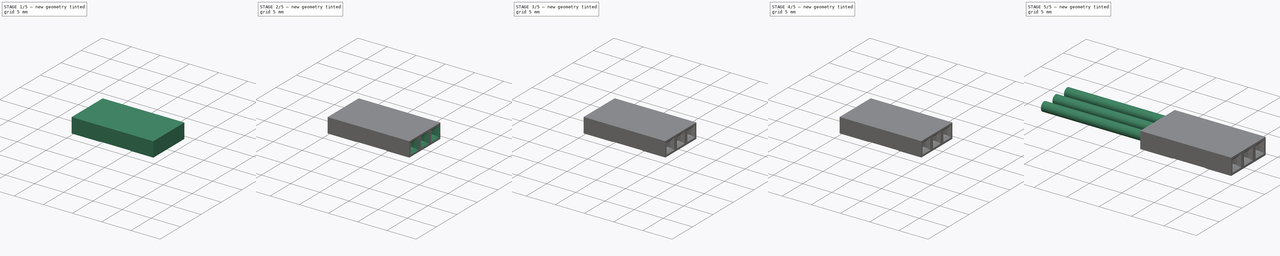
[diagram: build sequence overview — one tinted view per stage of 5, left to right]
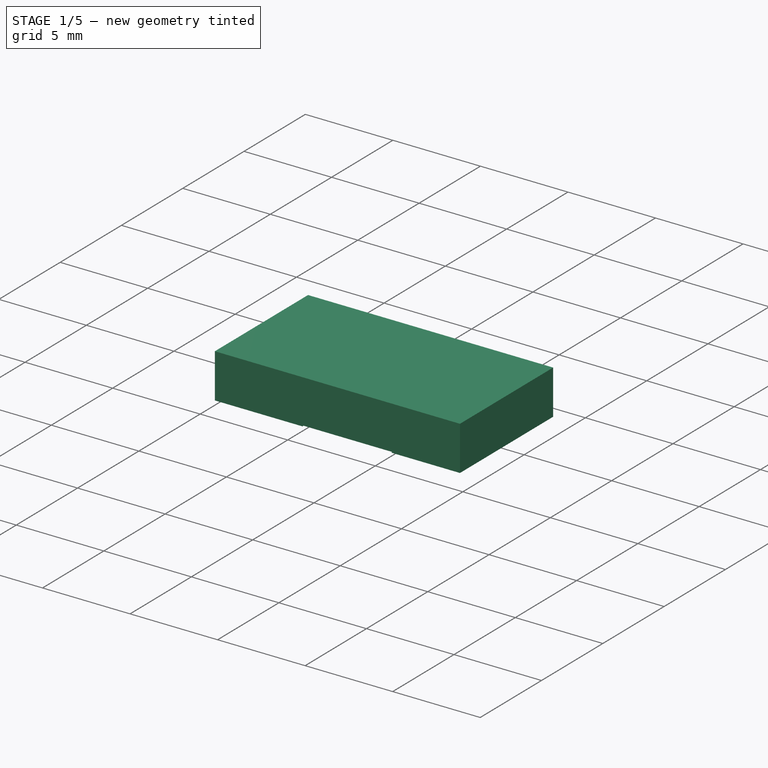
[diagram: stage 1 of 5 — iso view after this stage's code; geometry added in this stage tinted green]
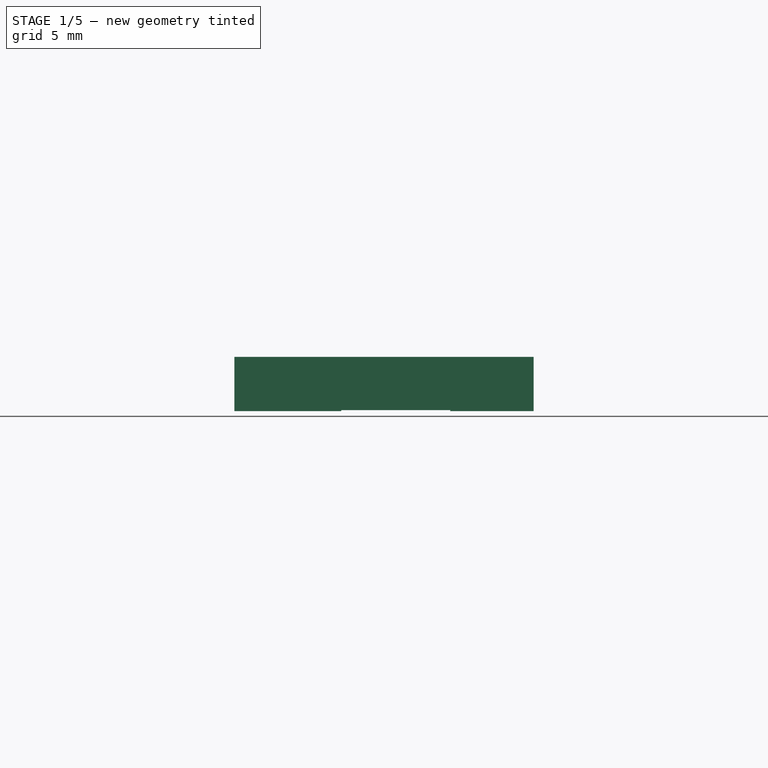
[diagram: stage 1 of 5 — front view after this stage's code; geometry added in this stage tinted green]
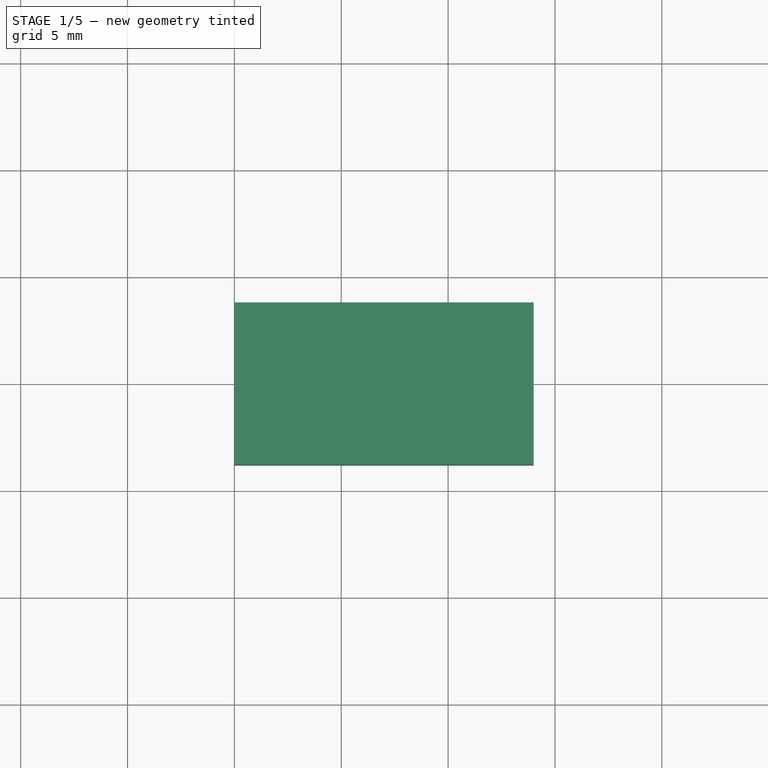
[diagram: stage 1 of 5 — top view after this stage's code; geometry added in this stage tinted green]
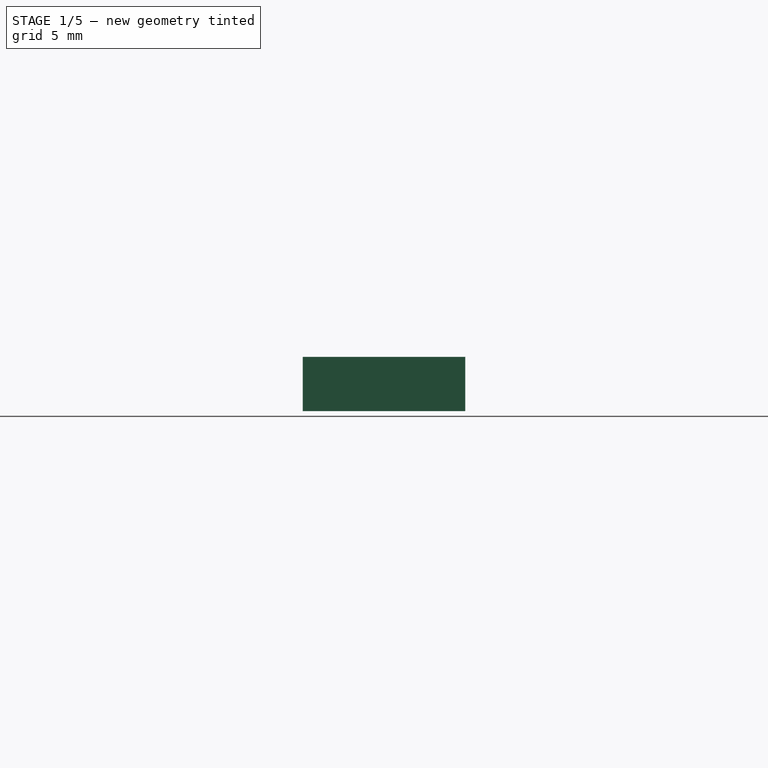
[diagram: stage 1 of 5 — right view after this stage's code; geometry added in this stage tinted green]
FCSTD DOCUMENT  (FreeCAD 0.19R17798 (Git))
Label: endstop-3pol
License: All rights reserved
LicenseURL: http://en.wikipedia.org/wiki/All_rights_reserved
objects: Sketcher::SketchObject×8, PartDesign::Pocket×6, Part::FeaturePython×4, Part::Cylinder×3, App::DocumentObjectGroup×3, PartDesign::Pad×2, PartDesign::Fillet×1, PartDesign::Chamfer×1
note: 33 computed .brp shape members not serialized (recipe doc carries the construction recipe); baked Part::Feature solids carry a one-line shape summary decoded from their .brp

FEATURE [Sketcher::SketchObject] Sketch  label="Connector-body-sketch"
  MapMode = 5
  sketch-geometry (4):
    g0: LineSegment StartX=0 StartY=3.8 StartZ=0 EndX=14 EndY=3.8 EndZ=0
    g1: LineSegment StartX=14 StartY=3.8 StartZ=0 EndX=14 EndY=-3.8 EndZ=0
    g2: LineSegment StartX=14 StartY=-3.8 StartZ=0 EndX=0 EndY=-3.8 EndZ=0
    g3: LineSegment StartX=0 StartY=-3.8 StartZ=0 EndX=0 EndY=3.8 EndZ=0
  constraints (12):
    c: Coincident(g0,g1)
    c: Coincident(g1,g2)
    c: Coincident(g2,g3)
    c: Coincident(g3,g0)
    c: Horizontal(g0)
    c: Horizontal(g2)
    c: Vertical(g1)
    c: Vertical(g3)
    c: PointOnObject(g0,g-2)
    c: Symmetric(g0,g2,g-1)
    c: DistanceY(g1,g1) = 7.6
    c: DistanceX(g0,g0) = 14
FEATURE [PartDesign::Pad] Pad  label="Connector-body1"
  Length = 2.54
  Length2 = 100
  Midplane = true
  Profile = -> Sketch
  Type = 0
FEATURE [Sketcher::SketchObject] Sketch018  label="back-cutouts-sketch"
  MapMode = 5
  Placement = pos=(0,0,0) rot=(0.57735,-0.57735,-0.57735;2.0944rad)
  Support = -> [Pad]
  sketch-geometry (12):
    g0: LineSegment StartX=-0.9 StartY=1 StartZ=0 EndX=0.9 EndY=1 EndZ=0
    g1: LineSegment StartX=0.9 StartY=1 StartZ=0 EndX=0.9 EndY=-1 EndZ=0
    g2: LineSegment StartX=0.9 StartY=-1 StartZ=0 EndX=-0.9 EndY=-1 EndZ=0
    g3: LineSegment StartX=-0.9 StartY=-1 StartZ=0 EndX=-0.9 EndY=1 EndZ=0
    g4: LineSegment StartX=-3.5 StartY=1 StartZ=0 EndX=-1.7 EndY=1 EndZ=0
    g5: LineSegment StartX=-1.7 StartY=1 StartZ=0 EndX=-1.7 EndY=-1 EndZ=0
    g6: LineSegment StartX=-1.7 StartY=-1 StartZ=0 EndX=-3.5 EndY=-1 EndZ=0
    g7: LineSegment StartX=-3.5 StartY=-1 StartZ=0 EndX=-3.5 EndY=1 EndZ=0
    g8: LineSegment StartX=1.7 StartY=1 StartZ=0 EndX=3.5 EndY=1 EndZ=0
    g9: LineSegment StartX=3.5 StartY=1 StartZ=0 EndX=3.5 EndY=-1 EndZ=0
    g10: LineSegment StartX=3.5 StartY=-1 StartZ=0 EndX=1.7 EndY=-1 EndZ=0
    g11: LineSegment StartX=1.7 StartY=-1 StartZ=0 EndX=1.7 EndY=1 EndZ=0
  constraints (35):
    c: Coincident(g0,g1)
    c: Coincident(g1,g2)
    c: Coincident(g2,g3)
    c: Coincident(g3,g0)
    c: Horizontal(g0)
    c: Horizontal(g2)
    c: Vertical(g1)
    c: Vertical(g3)
    c: Symmetric(g0,g1,g-1)
    c: DistanceY(g1,g1) = 2
    c: DistanceX(g0,g0) = 1.8
    c: Coincident(g4,g5)
    c: Coincident(g5,g6)
    c: Coincident(g6,g7)
    c: Coincident(g7,g4)
    c: Horizontal(g4)
    c: Horizontal(g6)
    c: Vertical(g5)
    c: Vertical(g7)
    c: Coincident(g8,g9)
    c: Coincident(g9,g10)
    c: Coincident(g10,g11)
    c: Coincident(g11,g8)
    c: Horizontal(g8)
    c: Horizontal(g10)
    c: Vertical(g9)
    c: Vertical(g11)
    c: Equal(g4,g0)
    c: Equal(g0,g8)
    c: Equal(g3,g5)
    c: Equal(g5,g11)
    c: Symmetric(g4,g5,g-1)
    c: Symmetric(g8,g10,g-1)
    c: DistanceX(g4,g0) = 0.8
    c: Symmetric(g4,g8,g-2)
FEATURE [PartDesign::Pocket] Pocket  label="back-cutouts"
  Length = 13
  Length2 = 100
  Profile = -> Sketch018
  Type = 0
FEATURE [Sketcher::SketchObject] Sketch019  label="bottom-central-cutout-sketch"
  ExternalGeometry = -> [Pocket]
  MapMode = 5
  Placement = pos=(0,0,-1.27) rot=(1,0,0;3.14159rad)
  Support = -> [Pocket]
  sketch-geometry (4):
    g0: LineSegment StartX=5 StartY=3.8 StartZ=0 EndX=10.1 EndY=3.8 EndZ=0
    g1: LineSegment StartX=10.1 StartY=3.8 StartZ=0 EndX=10.1 EndY=-3.8 EndZ=0
    g2: LineSegment StartX=10.1 StartY=-3.8 StartZ=0 EndX=5 EndY=-3.8 EndZ=0
    g3: LineSegment StartX=5 StartY=-3.8 StartZ=0 EndX=5 EndY=3.8 EndZ=0
  constraints (12):
    c: Coincident(g0,g1)
    c: Coincident(g1,g2)
    c: Coincident(g2,g3)
    c: Coincident(g3,g0)
    c: Horizontal(g0)
    c: Horizontal(g2)
    c: Vertical(g1)
    c: Vertical(g3)
    c: PointOnObject(g0,g-3)
    c: PointOnObject(g2,g-4)
    c: DistanceX(g2,g1) = 5.1
    c: DistanceX(g0,g-3) = 3.9
FEATURE [PartDesign::Pocket] Pocket001  label="bottom-central-cutout"
  Length = 0.05
  Length2 = 100
  Profile = -> Sketch019
  Type = 0
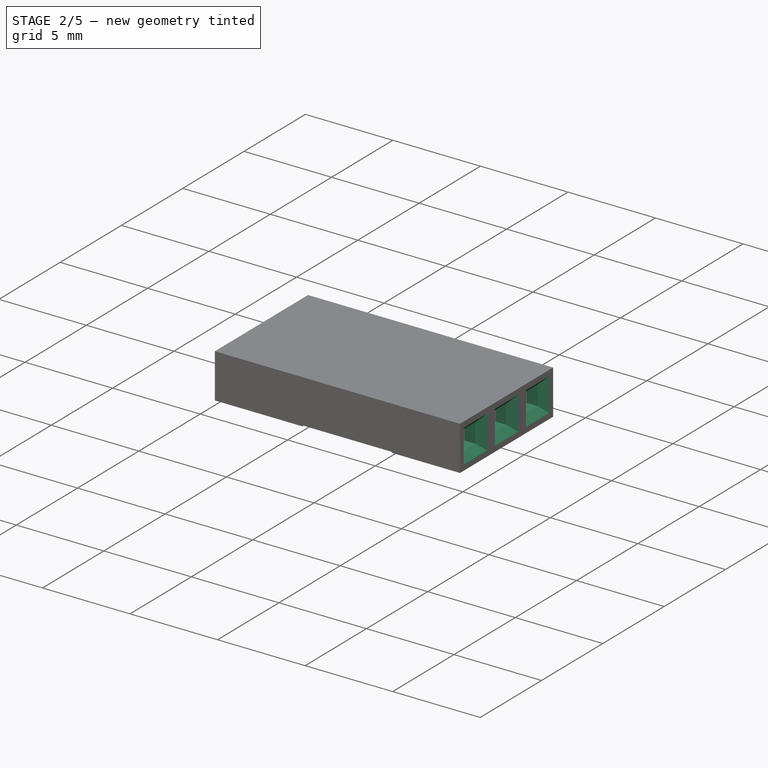
[diagram: stage 2 of 5 — iso view after this stage's code; geometry added in this stage tinted green]
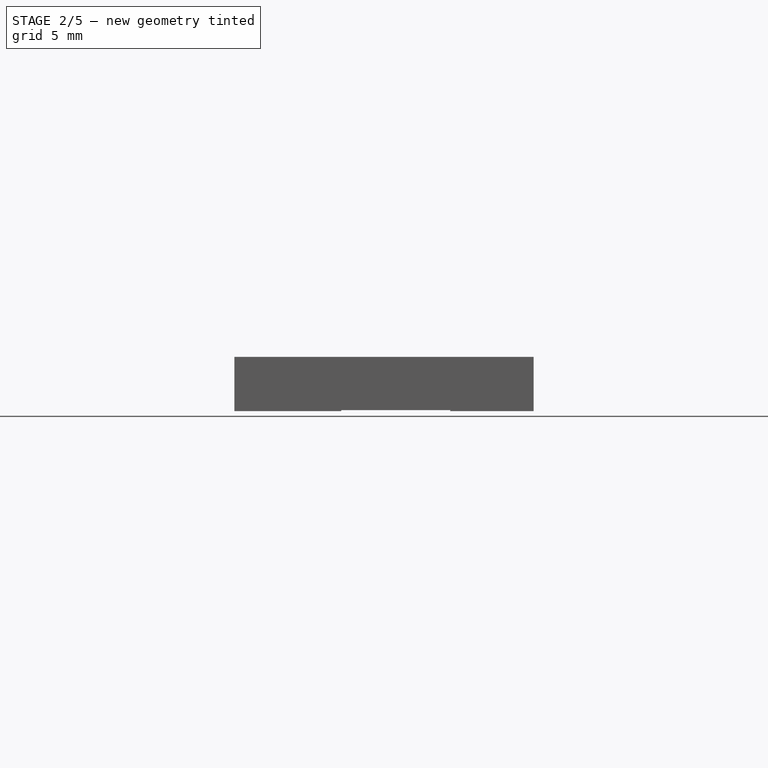
[diagram: stage 2 of 5 — front view after this stage's code; geometry added in this stage tinted green]
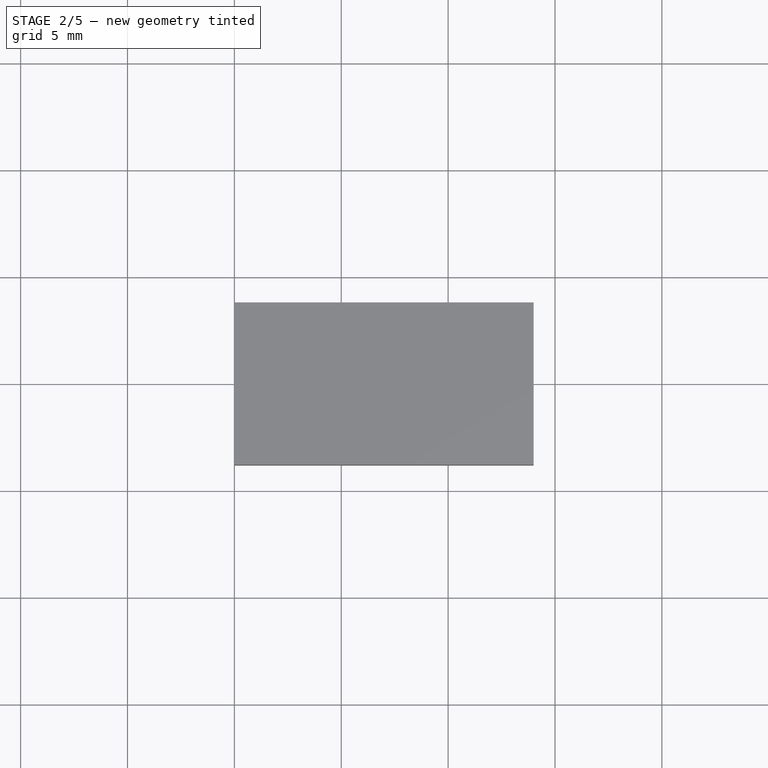
[diagram: stage 2 of 5 — top view after this stage's code; geometry added in this stage tinted green]
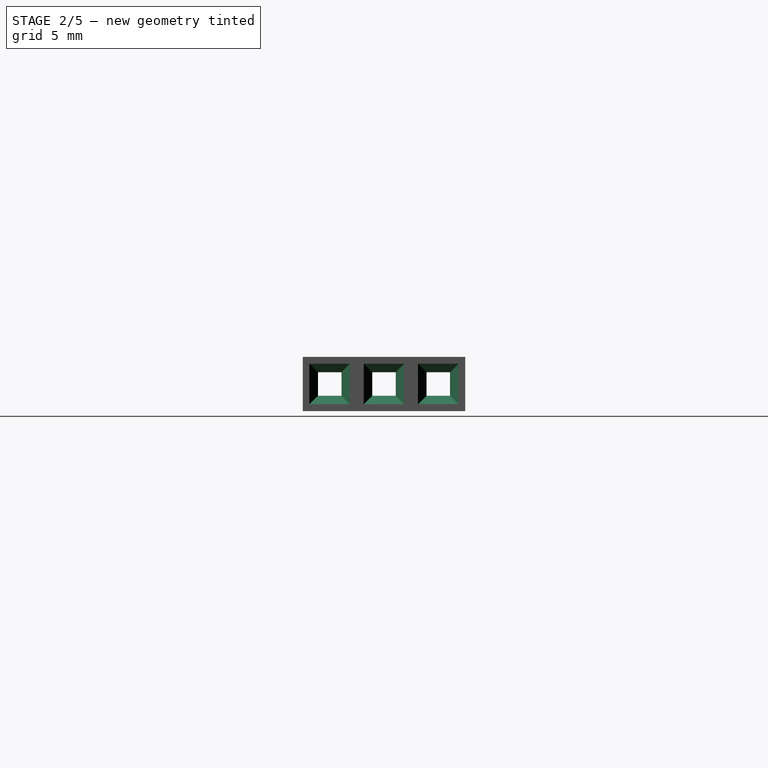
[diagram: stage 2 of 5 — right view after this stage's code; geometry added in this stage tinted green]
FEATURE [Sketcher::SketchObject] Sketch020  label="Bottom-pins-cutout-sketc"
  ExternalGeometry = -> [Pocket001]
  MapMode = 5
  Placement = pos=(0,0,-1.22) rot=(1,0,0;3.14159rad)
  Support = -> [Pocket001]
  sketch-geometry (24):
    g0: LineSegment StartX=10.1 StartY=0.9 StartZ=0 EndX=5 EndY=0.9 EndZ=0
    g1: LineSegment StartX=5 StartY=0.9 StartZ=0 EndX=5 EndY=0.7 EndZ=0
    g2: LineSegment StartX=5 StartY=0.7 StartZ=0 EndX=8.3 EndY=0.7 EndZ=0
    g3: LineSegment StartX=8.3 StartY=0.7 StartZ=0 EndX=8.3 EndY=-0.7 EndZ=0
    g4: LineSegment StartX=8.3 StartY=-0.7 StartZ=0 EndX=5 EndY=-0.7 EndZ=0
    g5: LineSegment StartX=5 StartY=-0.7 StartZ=0 EndX=5 EndY=-0.9 EndZ=0
    g6: LineSegment StartX=5 StartY=-0.9 StartZ=0 EndX=10.1 EndY=-0.9 EndZ=0
    g7: LineSegment StartX=10.1 StartY=-0.9 StartZ=0 EndX=10.1 EndY=0.9 EndZ=0
    g8: LineSegment StartX=10.1 StartY=3.5 StartZ=0 EndX=5 EndY=3.5 EndZ=0
    g9: LineSegment StartX=5 StartY=3.5 StartZ=0 EndX=5 EndY=3.3 EndZ=0
    g10: LineSegment StartX=5 StartY=3.3 StartZ=0 EndX=8.3 EndY=3.3 EndZ=0
    g11: LineSegment StartX=8.3 StartY=3.3 StartZ=0 EndX=8.3 EndY=1.9 EndZ=0
    g12: LineSegment StartX=8.3 StartY=1.9 StartZ=0 EndX=5 EndY=1.9 EndZ=0
    g13: LineSegment StartX=5 StartY=1.9 StartZ=0 EndX=5 EndY=1.7 EndZ=0
    g14: LineSegment StartX=5 StartY=1.7 StartZ=0 EndX=10.1 EndY=1.7 EndZ=0
    g15: LineSegment StartX=10.1 StartY=1.7 StartZ=0 EndX=10.1 EndY=3.5 EndZ=0
    g16: LineSegment StartX=10.1 StartY=-1.7 StartZ=0 EndX=5 EndY=-1.7 EndZ=0
    g17: LineSegment StartX=5 StartY=-1.7 StartZ=0 EndX=5 EndY=-1.9 EndZ=0
    g18: LineSegment StartX=5 StartY=-1.9 StartZ=0 EndX=8.3 EndY=-1.9 EndZ=0
    g19: LineSegment StartX=8.3 StartY=-1.9 StartZ=0 EndX=8.3 EndY=-3.3 EndZ=0
    g20: LineSegment StartX=8.3 StartY=-3.3 StartZ=0 EndX=5 EndY=-3.3 EndZ=0
    g21: LineSegment StartX=5 StartY=-3.3 StartZ=0 EndX=5 EndY=-3.5 EndZ=0
    g22: LineSegment StartX=5 StartY=-3.5 StartZ=0 EndX=10.1 EndY=-3.5 EndZ=0
    g23: LineSegment StartX=10.1 StartY=-3.5 StartZ=0 EndX=10.1 EndY=-1.7 EndZ=0
  constraints (71):
    c: Horizontal(g0)
    c: Coincident(g0,g1)
    c: Coincident(g1,g2)
    c: Horizontal(g2)
    c: Coincident(g2,g3)
    c: Vertical(g3)
    c: Coincident(g3,g4)
    c: Horizontal(g4)
    c: Coincident(g4,g5)
    c: Vertical(g5)
    c: Coincident(g5,g6)
    c: Horizontal(g6)
    c: Coincident(g6,g7)
    c: Coincident(g7,g0)
    c: Vertical(g7)
    c: Vertical(g1)
    c: Equal(g1,g5)
    c: PointOnObject(g0,g-4)
    c: PointOnObject(g0,g-5)
    c: Symmetric(g5,g0,g-1)
    c: DistanceY(g5,g4) = 0.2
    c: DistanceX(g3,g6) = 1.8
    c: Horizontal(g8)
    c: Coincident(g8,g9)
    c: Coincident(g9,g10)
    c: Horizontal(g10)
    c: Coincident(g10,g11)
    c: Vertical(g11)
    c: Coincident(g11,g12)
    c: Horizontal(g12)
    c: Coincident(g12,g13)
    c: Vertical(g13)
    c: Coincident(g13,g14)
    c: Horizontal(g14)
    c: Coincident(g14,g15)
    c: Vertical(g15)
    c: Coincident(g8,g15)
    c: Vertical(g9)
    c: PointOnObject(g8,g-6)
    c: PointOnObject(g8,g-4)
    c: PointOnObject(g14,g-7)
    c: Equal(g1,g13)
    c: Equal(g13,g9)
    c: Horizontal(g16)
    c: Coincident(g16,g17)
    c: Vertical(g17)
    c: Coincident(g17,g18)
    c: Horizontal(g18)
    c: Coincident(g18,g19)
    c: Vertical(g19)
    c: Coincident(g19,g20)
    c: Horizontal(g20)
    c: Coincident(g20,g21)
    c: Coincident(g21,g22)
    c: Horizontal(g22)
    c: Coincident(g22,g23)
    c: Coincident(g23,g16)
    c: Vertical(g21)
    c: Vertical(g23)
    c: Equal(g17,g21)
    c: Equal(g21,g5)
    c: PointOnObject(g0,g-3)
    c: PointOnObject(g13,g-3)
    c: PointOnObject(g9,g-3)
    c: PointOnObject(g16,g-3)
    c: PointOnObject(g20,g-3)
    c: PointOnObject(g16,g-8)
    c: PointOnObject(g21,g-9)
    c: PointOnObject(g16,g-4)
    c: PointOnObject(g18,g3)
    c: PointOnObject(g11,g3)
FEATURE [PartDesign::Pocket] Pocket002  label="bottom-pins-cutout"
  Length = 5
  Length2 = 100
  Profile = -> Sketch020
  Type = 2
FEATURE [PartDesign::Pocket] Pocket004  label="front-cutouts"
  Length = 5
  Length2 = 100
  Profile = -> Sketch021
  Type = 2
FEATURE [PartDesign::Chamfer] Chamfer  label="front-cutouts-chamfers"
  Base = -> Pocket004 [Edge135,Edge138,Edge137,Edge136,Edge133,Edge132,Edge131,Edge134,Edge129,Edge128,Edge130,Edge127]
  Size = 0.4
FEATURE [Sketcher::SketchObject] Sketch024  label="arrow-sketch"
  ExternalGeometry = -> [Chamfer]
  MapMode = 5
  Placement = pos=(0,0,-1.27) rot=(1,0,0;3.14159rad)
  Support = -> [Chamfer]
  sketch-geometry (4):
    g0: LineSegment StartX=10.5 StartY=3.15 StartZ=0 EndX=10.5 EndY=2.05 EndZ=0
    g1: LineSegment StartX=10.5 StartY=2.05 StartZ=0 EndX=12.1 EndY=2.6 EndZ=0
    g2: LineSegment StartX=12.1 StartY=2.6 StartZ=0 EndX=10.5 EndY=3.15 EndZ=0
    g3: LineSegment [constr] StartX=10.5 StartY=2.6 StartZ=0 EndX=12.1 EndY=2.6 EndZ=0
  constraints (12):
    c: Vertical(g0)
    c: Coincident(g0,g1)
    c: Coincident(g1,g2)
    c: Coincident(g2,g0)
    c: PointOnObject(g3,g0)
    c: Coincident(g3,g1)
    c: Horizontal(g3)
    c: Symmetric(g0,g0,g3)
    c: DistanceX(g-3,g0) = 0.4
    c: DistanceX(g3,g3) = 1.6
    c: DistanceY(g0,g0) = 1.1
    c: Symmetric(g-3,g-3,g3)
FEATURE [PartDesign::Pocket] Pocket005  label="Connector-final"
  Length = 0.05
  Length2 = 100
  Profile = -> Sketch024
  Type = 0
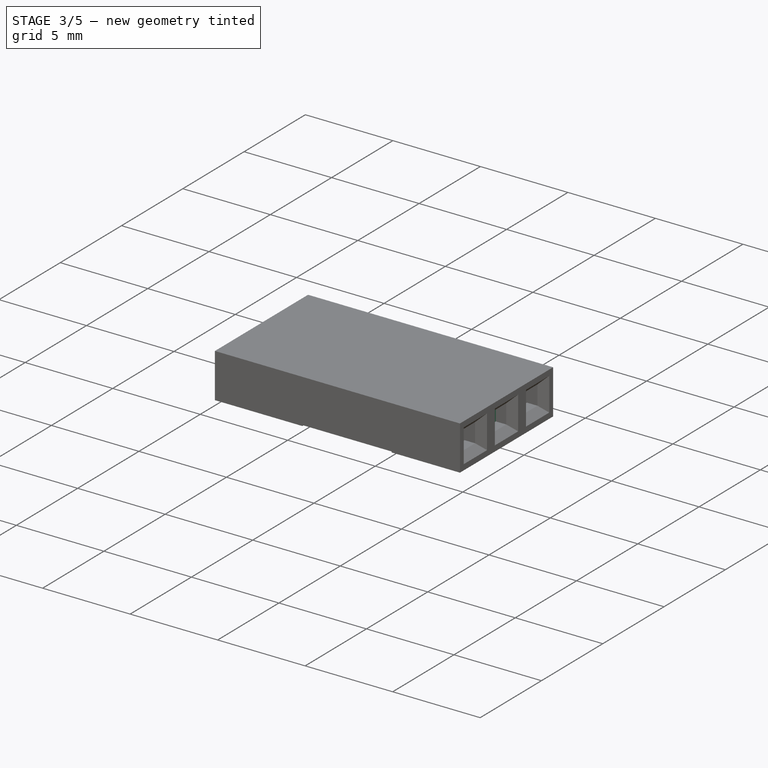
[diagram: stage 3 of 5 — iso view after this stage's code; geometry added in this stage tinted green]
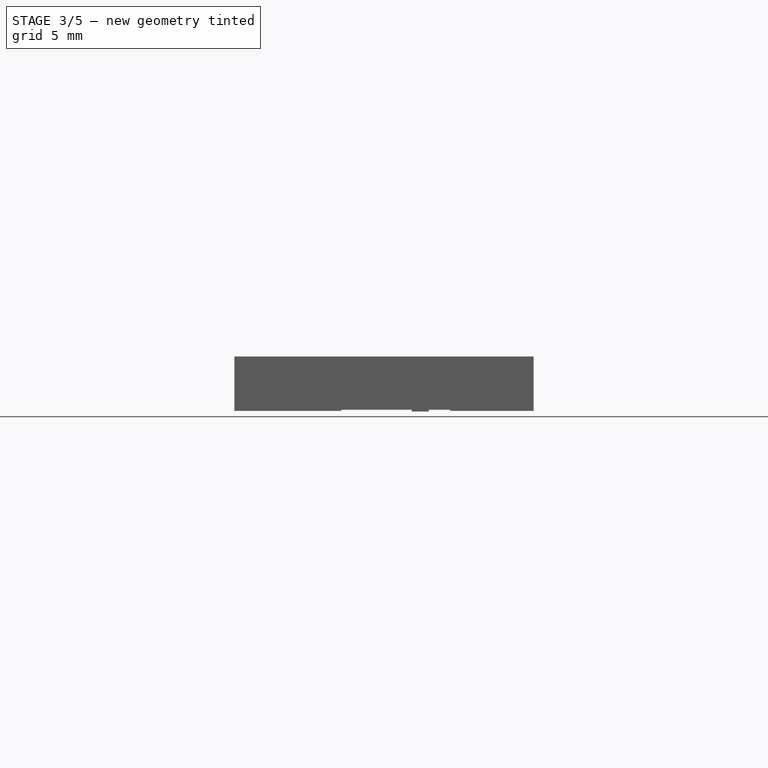
[diagram: stage 3 of 5 — front view after this stage's code; geometry added in this stage tinted green]
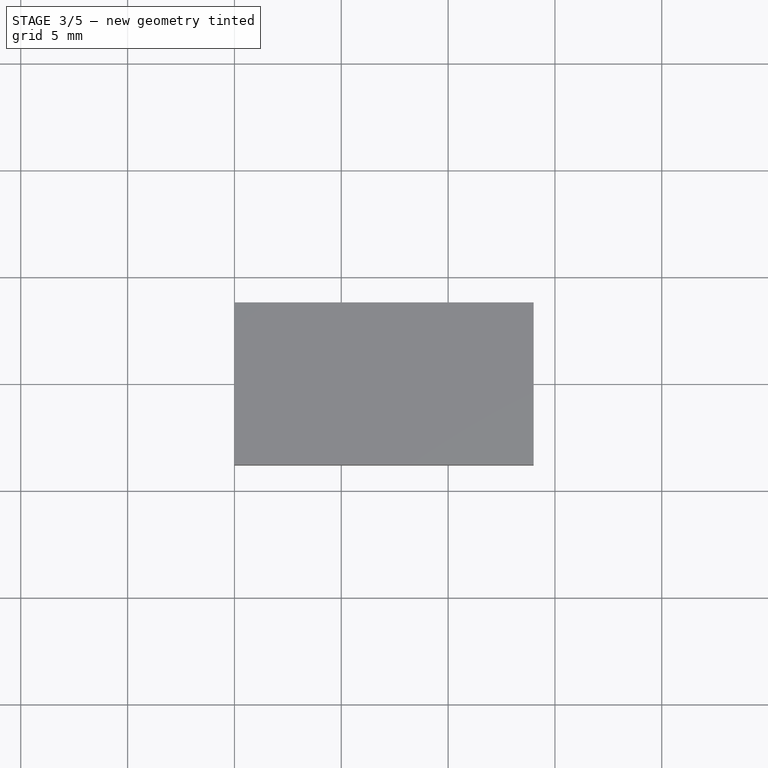
[diagram: stage 3 of 5 — top view after this stage's code; geometry added in this stage tinted green]
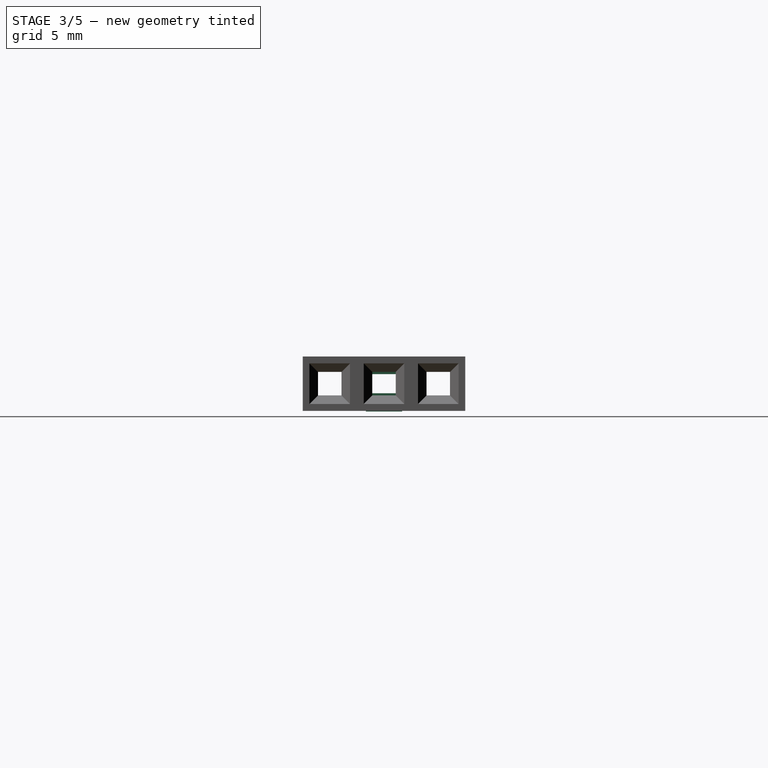
[diagram: stage 3 of 5 — right view after this stage's code; geometry added in this stage tinted green]
FEATURE [Sketcher::SketchObject] Sketch021  label="front-cutouts-sketch"
  MapMode = 5
  Placement = pos=(14,0,0) rot=(0.57735,0.57735,0.57735;2.0944rad)
  Support = -> [Pocket002]
  sketch-geometry (12):
    g0: LineSegment StartX=-0.55 StartY=0.55 StartZ=0 EndX=0.55 EndY=0.55 EndZ=0
    g1: LineSegment StartX=0.55 StartY=0.55 StartZ=0 EndX=0.55 EndY=-0.55 EndZ=0
    g2: LineSegment StartX=0.55 StartY=-0.55 StartZ=0 EndX=-0.55 EndY=-0.55 EndZ=0
    g3: LineSegment StartX=-0.55 StartY=-0.55 StartZ=0 EndX=-0.55 EndY=0.55 EndZ=0
    g4: LineSegment StartX=-3.09 StartY=0.55 StartZ=0 EndX=-1.99 EndY=0.55 EndZ=0
    g5: LineSegment StartX=-1.99 StartY=0.55 StartZ=0 EndX=-1.99 EndY=-0.55 EndZ=0
    g6: LineSegment StartX=-1.99 StartY=-0.55 StartZ=0 EndX=-3.09 EndY=-0.55 EndZ=0
    g7: LineSegment StartX=-3.09 StartY=-0.55 StartZ=0 EndX=-3.09 EndY=0.55 EndZ=0
    g8: LineSegment StartX=1.99 StartY=0.55 StartZ=0 EndX=3.09 EndY=0.55 EndZ=0
    g9: LineSegment StartX=3.09 StartY=0.55 StartZ=0 EndX=3.09 EndY=-0.55 EndZ=0
    g10: LineSegment StartX=3.09 StartY=-0.55 StartZ=0 EndX=1.99 EndY=-0.55 EndZ=0
    g11: LineSegment StartX=1.99 StartY=-0.55 StartZ=0 EndX=1.99 EndY=0.55 EndZ=0
  constraints (34):
    c: Coincident(g0,g1)
    c: Coincident(g1,g2)
    c: Coincident(g2,g3)
    c: Coincident(g3,g0)
    c: Horizontal(g0)
    c: Horizontal(g2)
    c: Vertical(g1)
    c: Vertical(g3)
    c: Symmetric(g0,g1,g-1)
    c: Equal(g0,g1)
    c: DistanceY(g1,g1) = 1.1
    c: Coincident(g4,g5)
    c: Coincident(g5,g6)
    c: Coincident(g6,g7)
    c: Coincident(g7,g4)
    c: Horizontal(g4)
    c: Horizontal(g6)
    c: Vertical(g5)
    c: Vertical(g7)
    c: Coincident(g8,g9)
    c: Coincident(g9,g10)
    c: Coincident(g10,g11)
    c: Coincident(g11,g8)
    c: Horizontal(g8)
    c: Horizontal(g10)
    c: Vertical(g9)
    c: Vertical(g11)
    c: Equal(g10,g11)
    c: Equal(g11,g0)
    c: Equal(g0,g4)
    c: Equal(g4,g5)
    c: Symmetric(g4,g8,g-2)
    c: DistanceX(g4,g0) = 2.54
    c: PointOnObject(g4,g0)
FEATURE [Sketcher::SketchObject] Sketch022  label="pin-body-sketch"
  MapMode = 5
  Placement = pos=(0,0,0) rot=(1,0,0;1.5708rad)
  sketch-geometry (12):
    g0: LineSegment StartX=12.8 StartY=0.75 StartZ=0 EndX=12.8 EndY=-0.75 EndZ=0
    g1: LineSegment StartX=12.8 StartY=-0.75 StartZ=0 EndX=9.1 EndY=-0.75 EndZ=0
    g2: LineSegment StartX=9.1 StartY=-0.75 StartZ=0 EndX=9.1 EndY=-1.3 EndZ=0
    g3: LineSegment StartX=9.1 StartY=-1.3 StartZ=0 EndX=8.3 EndY=-1.3 EndZ=0
    g4: LineSegment StartX=8.3 StartY=-1.3 StartZ=0 EndX=8.3 EndY=-0.75 EndZ=0
    g5: LineSegment StartX=8.3 StartY=-0.75 StartZ=0 EndX=6.1 EndY=-0.15 EndZ=0
    g6: LineSegment StartX=6.1 StartY=-0.15 StartZ=0 EndX=6.1 EndY=0.05 EndZ=0
    g7: LineSegment StartX=6.1 StartY=0.05 StartZ=0 EndX=3 EndY=0.05 EndZ=0
    g8: LineSegment StartX=3 StartY=0.05 StartZ=0 EndX=3 EndY=-0.85 EndZ=0
    g9: LineSegment StartX=3 StartY=-0.85 StartZ=0 EndX=1.8 EndY=-0.85 EndZ=0
    g10: LineSegment StartX=1.8 StartY=-0.85 StartZ=0 EndX=1.8 EndY=0.75 EndZ=0
    g11: LineSegment StartX=1.8 StartY=0.75 StartZ=0 EndX=12.8 EndY=0.75 EndZ=0
  constraints (36):
    c: Vertical(g0)
    c: Coincident(g0,g1)
    c: Horizontal(g1)
    c: Coincident(g1,g2)
    c: Coincident(g2,g3)
    c: Coincident(g3,g4)
    c: Coincident(g4,g5)
    c: Coincident(g5,g6)
    c: Coincident(g6,g7)
    c: Horizontal(g7)
    c: Coincident(g7,g8)
    c: Vertical(g8)
    c: Coincident(g8,g9)
    c: Coincident(g9,g10)
    c: Vertical(g10)
    c: Coincident(g10,g11)
    c: Coincident(g11,g0)
    c: Horizontal(g11)
    c: Vertical(g6)
    c: Horizontal(g9)
    c: Horizontal(g3)
    c: Vertical(g2)
    c: Vertical(g4)
    c: Symmetric(g0,g0,g-1)
    c: DistanceY(g0,g0) = 1.5
    c: DistanceX(g11,g11) = 11
    c: DistanceX(g-1,g3) = 8.3
    c: DistanceX(g3,g0) = 4.5
    c: DistanceY(g3,g-1) = 1.3
    c: PointOnObject(g4,g1)
    c: DistanceY(g10,g10) = 1.6
    c: DistanceX(g9,g9) = 1.2
    c: DistanceY(g7,g10) = 0.7
    c: DistanceX(g3,g3) = 0.8
    c: DistanceX(g6,g1) = 3
    c: DistanceY(g6,g6) = 0.2
FEATURE [PartDesign::Pad] Pad001  label="pin-body"
  Length = 1.7
  Length2 = 100
  Midplane = true
  Placement = pos=(0,0,0) rot=(1,0,0;1.5708rad)
  Profile = -> Sketch022
  Type = 0
FEATURE [Sketcher::SketchObject] Sketch023  label="pin-frontal-cutout-sketch"
  MapMode = 5
  Placement = pos=(12.8,0,0) rot=(0.707107,0,0.707107;3.14159rad)
  Support = -> [Pad001]
  sketch-geometry (4):
    g0: LineSegment StartX=-0.45 StartY=0.6 StartZ=0 EndX=0.45 EndY=0.6 EndZ=0
    g1: LineSegment StartX=0.45 StartY=0.6 StartZ=0 EndX=0.45 EndY=-0.6 EndZ=0
    g2: LineSegment StartX=0.45 StartY=-0.6 StartZ=0 EndX=-0.45 EndY=-0.6 EndZ=0
    g3: LineSegment StartX=-0.45 StartY=-0.6 StartZ=0 EndX=-0.45 EndY=0.6 EndZ=0
  constraints (11):
    c: Coincident(g0,g1)
    c: Coincident(g1,g2)
    c: Coincident(g2,g3)
    c: Coincident(g3,g0)
    c: Horizontal(g0)
    c: Horizontal(g2)
    c: Vertical(g1)
    c: Vertical(g3)
    c: Symmetric(g0,g1,g-1)
    c: DistanceY(g1,g1) = 1.2
    c: DistanceX(g0,g0) = 0.9
FEATURE [PartDesign::Pocket] Pocket003  label="pin-frontal-cutout"
  Length = 5
  Length2 = 100
  Placement = pos=(0,0,0) rot=(1,0,0;1.5708rad)
  Profile = -> Sketch023
  Type = 1
FEATURE [App::DocumentObjectGroup] Grupo001  label="body-src"
  Group = -> [Pad,Pocket,Pocket001,Pocket002,Pocket004,Chamfer,Pocket005]
FEATURE [App::DocumentObjectGroup] Grupo  label="src"
  Group = -> [Grupo001,Grupo004]
FEATURE [Part::FeaturePython] Clone003  label="connector"  # Draft clone (typed FeaturePython)
  Objects = -> [Pocket005]
  Scale = (1,1,1)
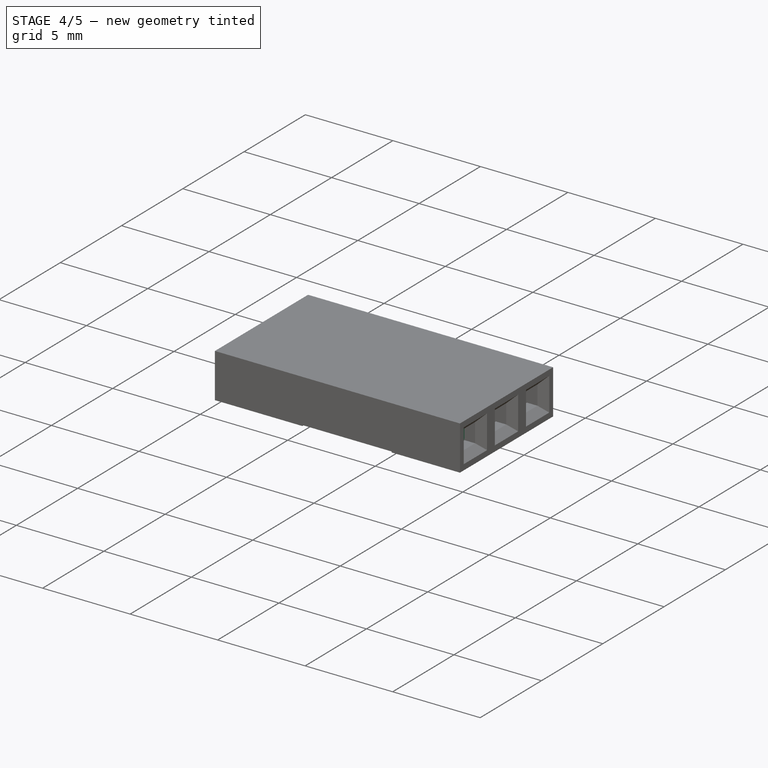
[diagram: stage 4 of 5 — iso view after this stage's code; geometry added in this stage tinted green]
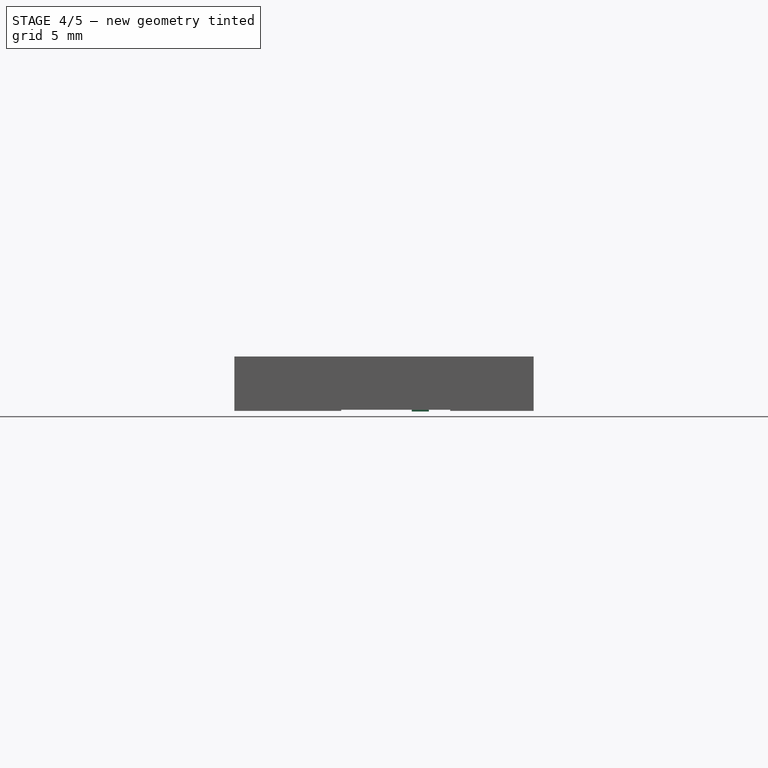
[diagram: stage 4 of 5 — front view after this stage's code; geometry added in this stage tinted green]
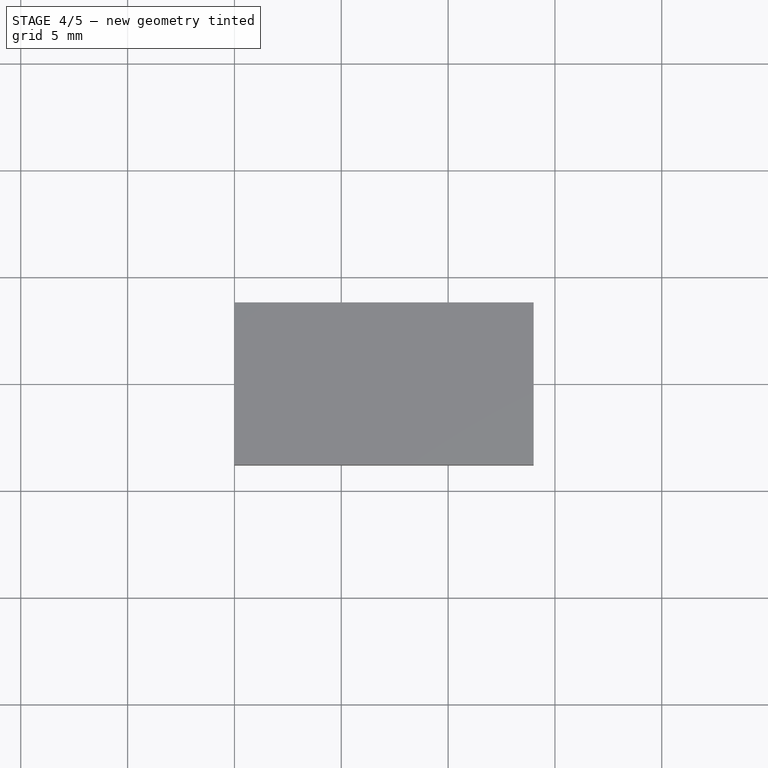
[diagram: stage 4 of 5 — top view after this stage's code; geometry added in this stage tinted green]
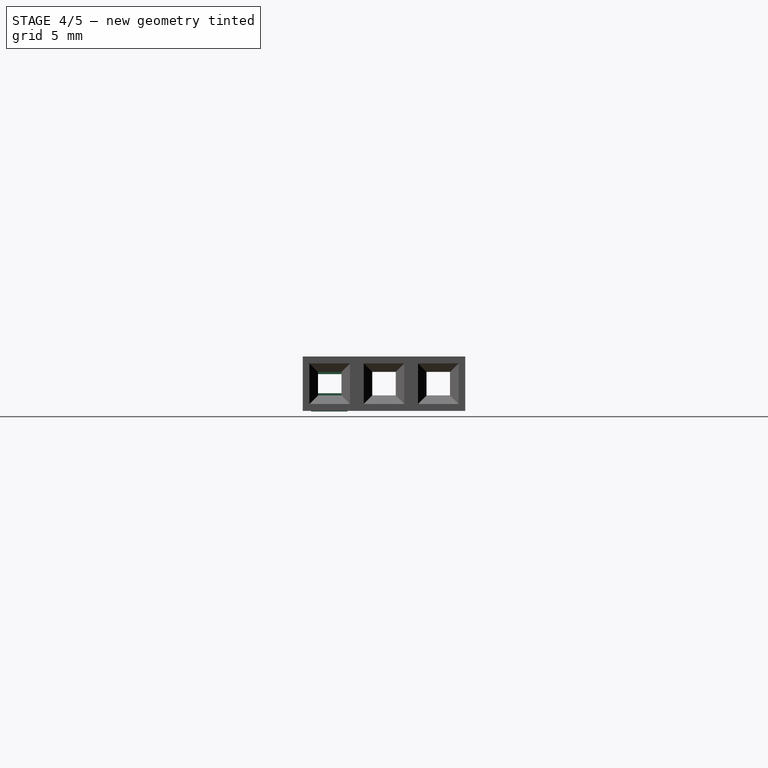
[diagram: stage 4 of 5 — right view after this stage's code; geometry added in this stage tinted green]
FEATURE [PartDesign::Fillet] Fillet  label="Pin-fillet"
  Base = -> Pocket003 [Edge11,Edge10,Edge22,Edge12,Edge30,Edge20]
  Placement = pos=(0,0,0) rot=(1,0,0;1.5708rad)
  Radius = 0.2
FEATURE [App::DocumentObjectGroup] Grupo004  label="Pins-src"
  Group = -> [Pad001,Pocket003,Fillet]
FEATURE [Part::FeaturePython] Clone  label="pin1"  # Draft clone (typed FeaturePython)
  Objects = -> [Fillet]
  Placement = pos=(0,0,0) rot=(1,0,0;1.5708rad)
  Scale = (1,1,1)
FEATURE [Part::FeaturePython] Clone001  label="pin2"  # Draft clone (typed FeaturePython)
  Objects = -> [Clone]
  Placement = pos=(0,2.6,0) rot=(1,0,0;1.5708rad)
  Scale = (1,1,1)
FEATURE [Part::FeaturePython] Clone002  label="pin3"  # Draft clone (typed FeaturePython)
  Objects = -> [Clone001]
  Placement = pos=(0,-2.56,0) rot=(1,0,0;1.5708rad)
  Scale = (1,1,1)
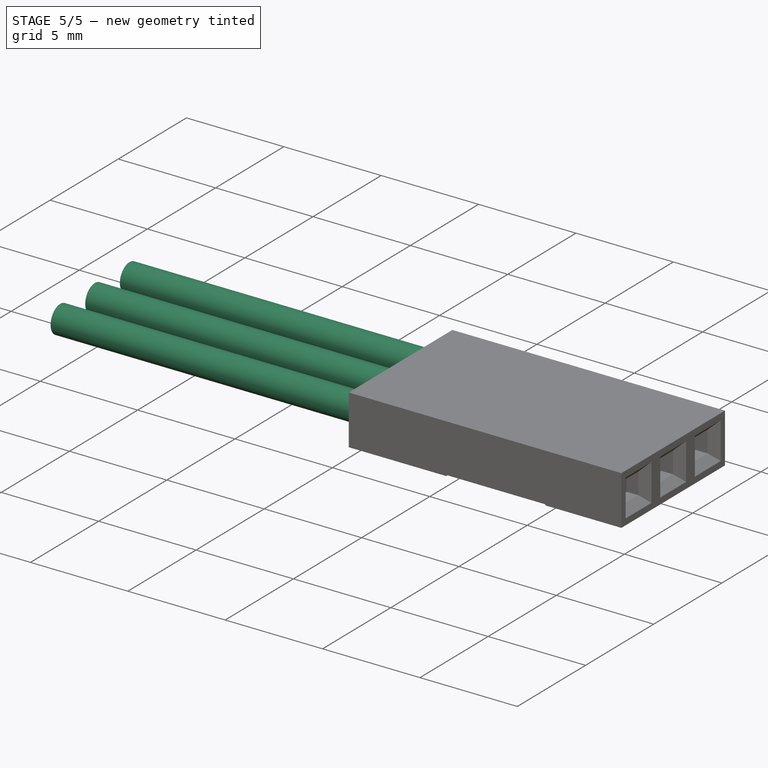
[diagram: stage 5 of 5 — iso view after this stage's code; geometry added in this stage tinted green]
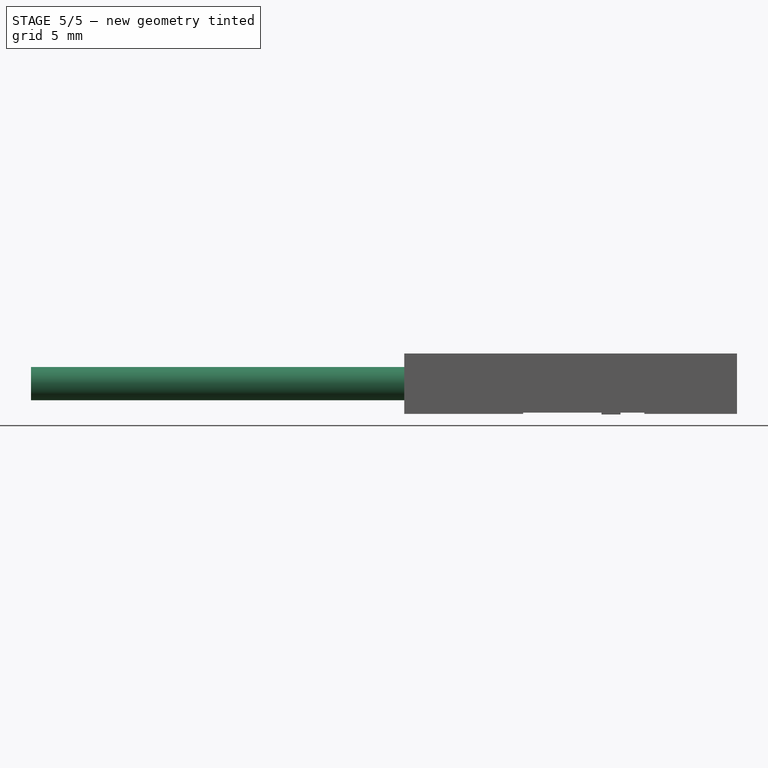
[diagram: stage 5 of 5 — front view after this stage's code; geometry added in this stage tinted green]
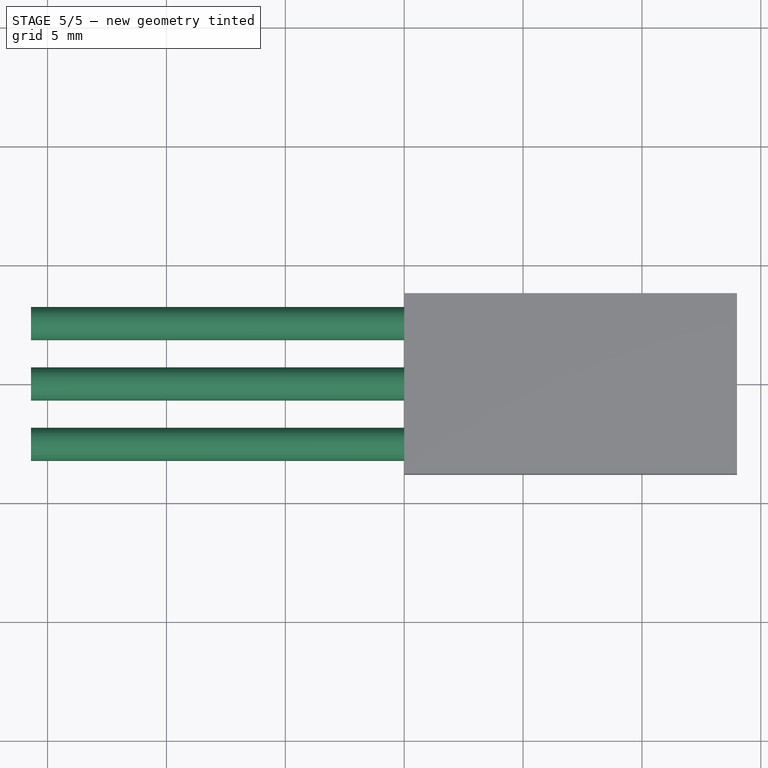
[diagram: stage 5 of 5 — top view after this stage's code; geometry added in this stage tinted green]
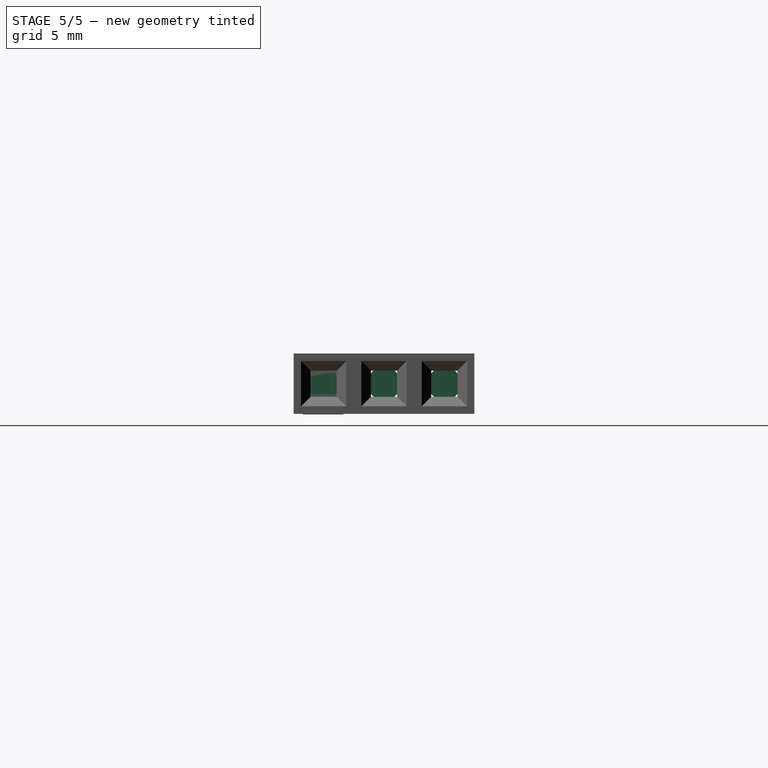
[diagram: stage 5 of 5 — right view after this stage's code; geometry added in this stage tinted green]
FEATURE [Part::Cylinder] Cylinder  label="vcc-wire"
  Angle = 360
  AttacherType = Attacher::AttachEngine3D
  Height = 20
  Placement = pos=(4.3,0,0) rot=(0,-1,0;1.5708rad)
  Radius = 0.7
  expr: Radius = 1.4 / 2
FEATURE [Part::Cylinder] Cylinder001  label="vcc-signal"
  Angle = 360
  AttacherType = Attacher::AttachEngine3D
  Height = 20
  Placement = pos=(4.3,2.54,0) rot=(0,-1,0;1.5708rad)
  Radius = 0.7
  expr: Radius = 1.4 / 2
FEATURE [Part::Cylinder] Cylinder002  label="wire-gnd"
  Angle = 360
  AttacherType = Attacher::AttachEngine3D
  Height = 20
  Placement = pos=(4.3,-2.54,0) rot=(0,-1,0;1.5708rad)
  Radius = 0.7
  expr: Radius = 1.4 / 2
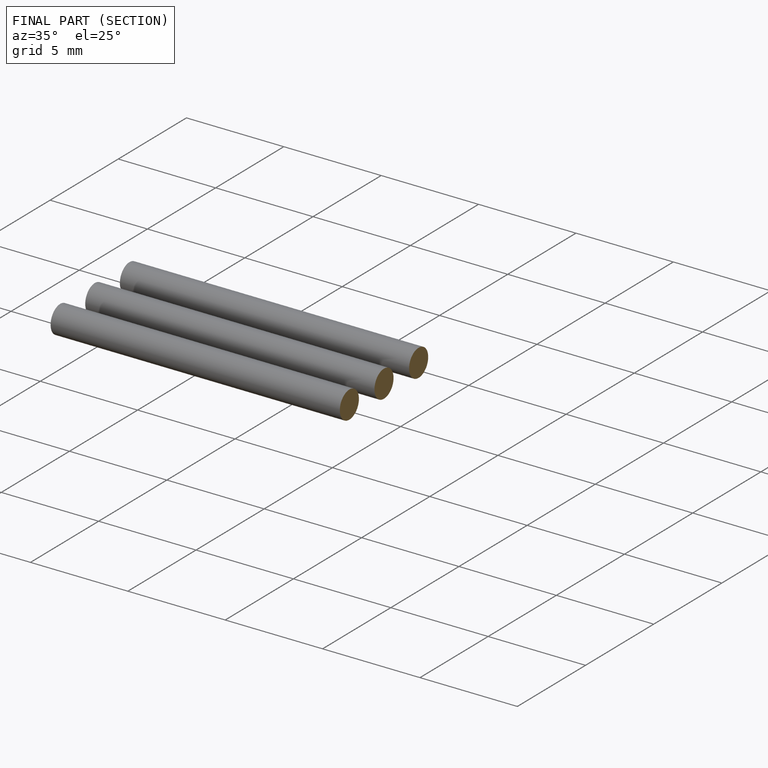
[diagram: finished part — half-section view (interior)]
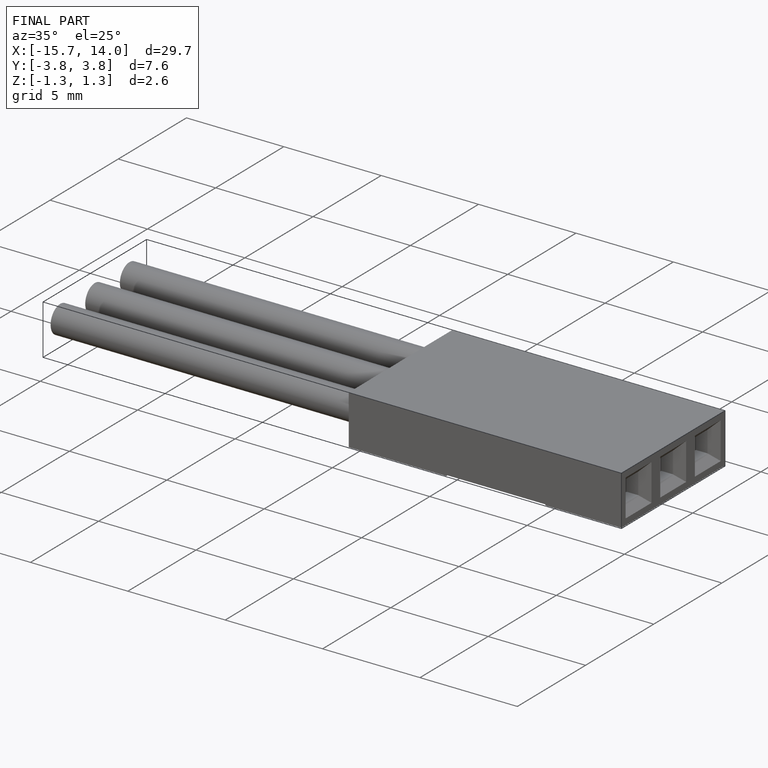
[diagram: finished part — iso view with bounding-box wireframe]
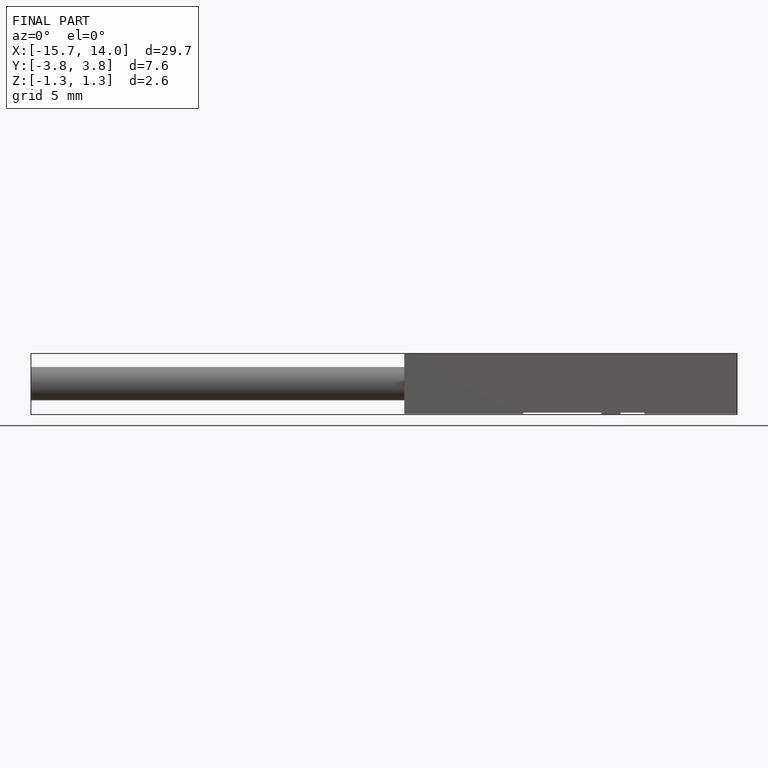
[diagram: finished part — front view with bounding-box wireframe]
